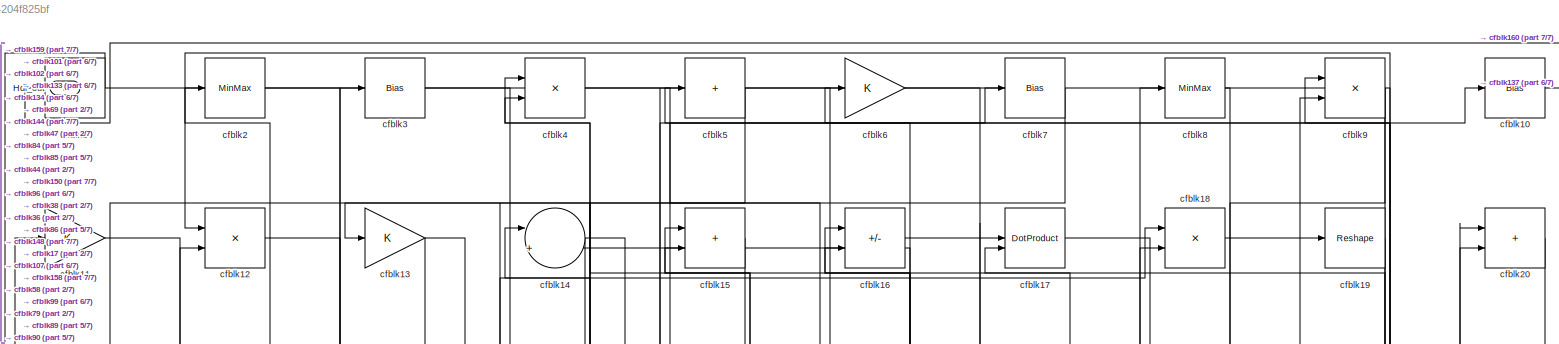
[diagram: root canvas - part 1/7, full width, top band]
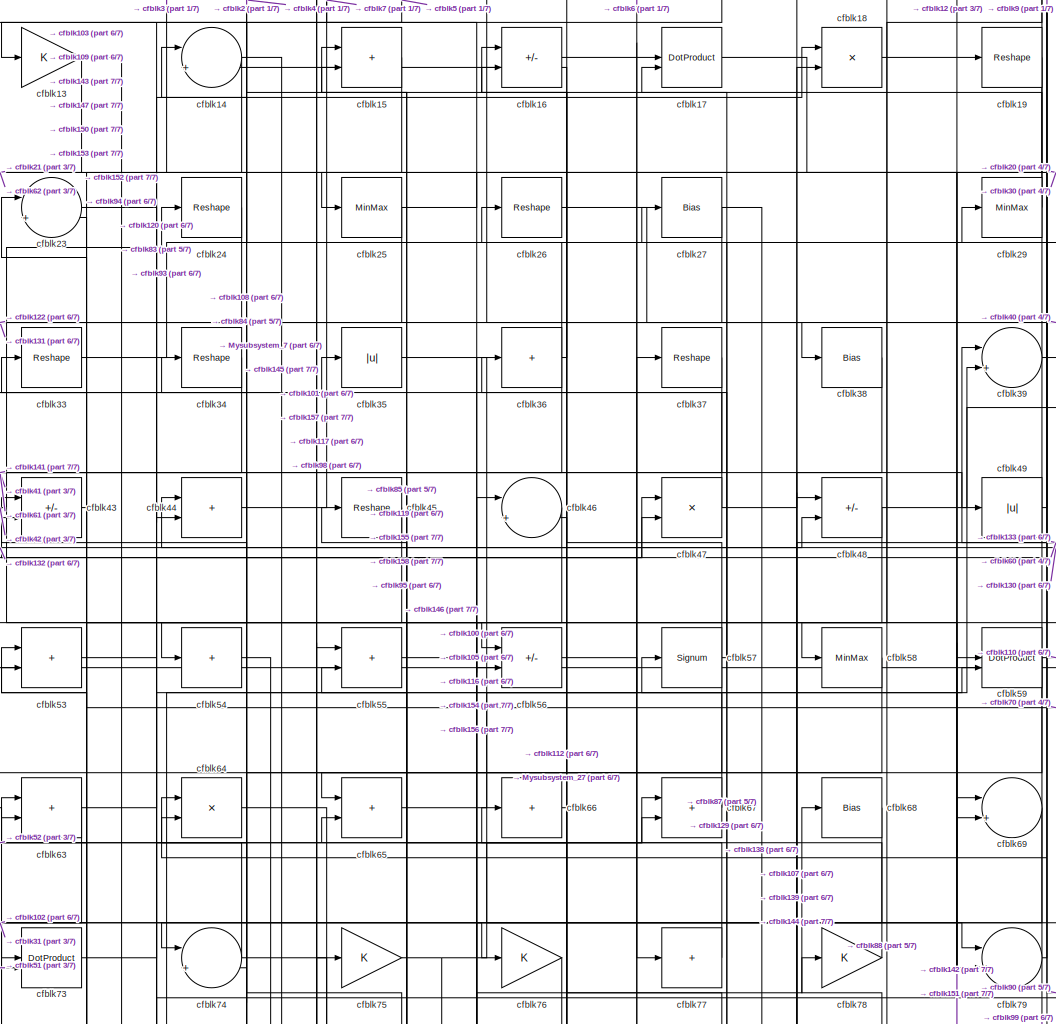
[diagram: root canvas - part 2/7, top center region]
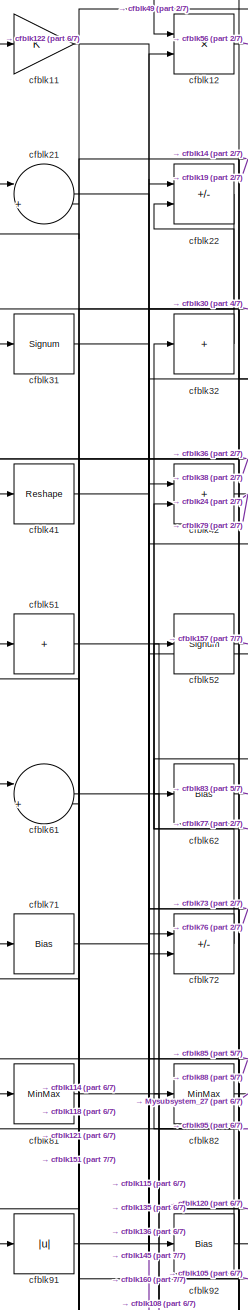
[diagram: root canvas - part 3/7, middle left region]
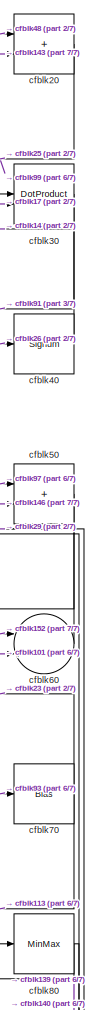
[diagram: root canvas - part 4/7, top right region]
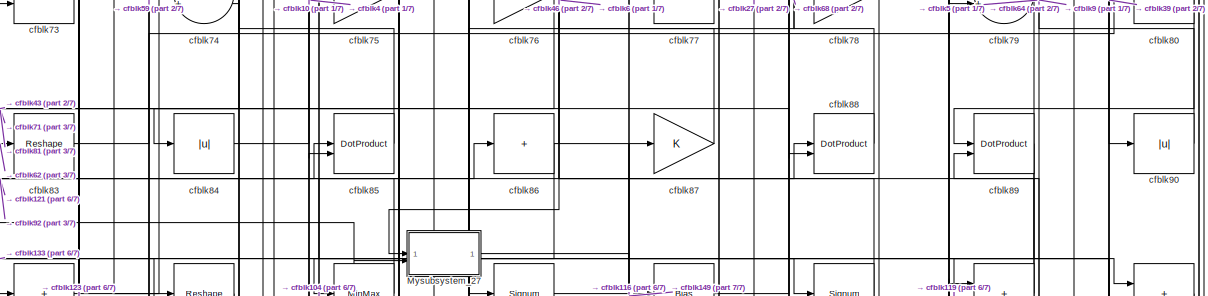
[diagram: root canvas - part 5/7, full width, middle band]
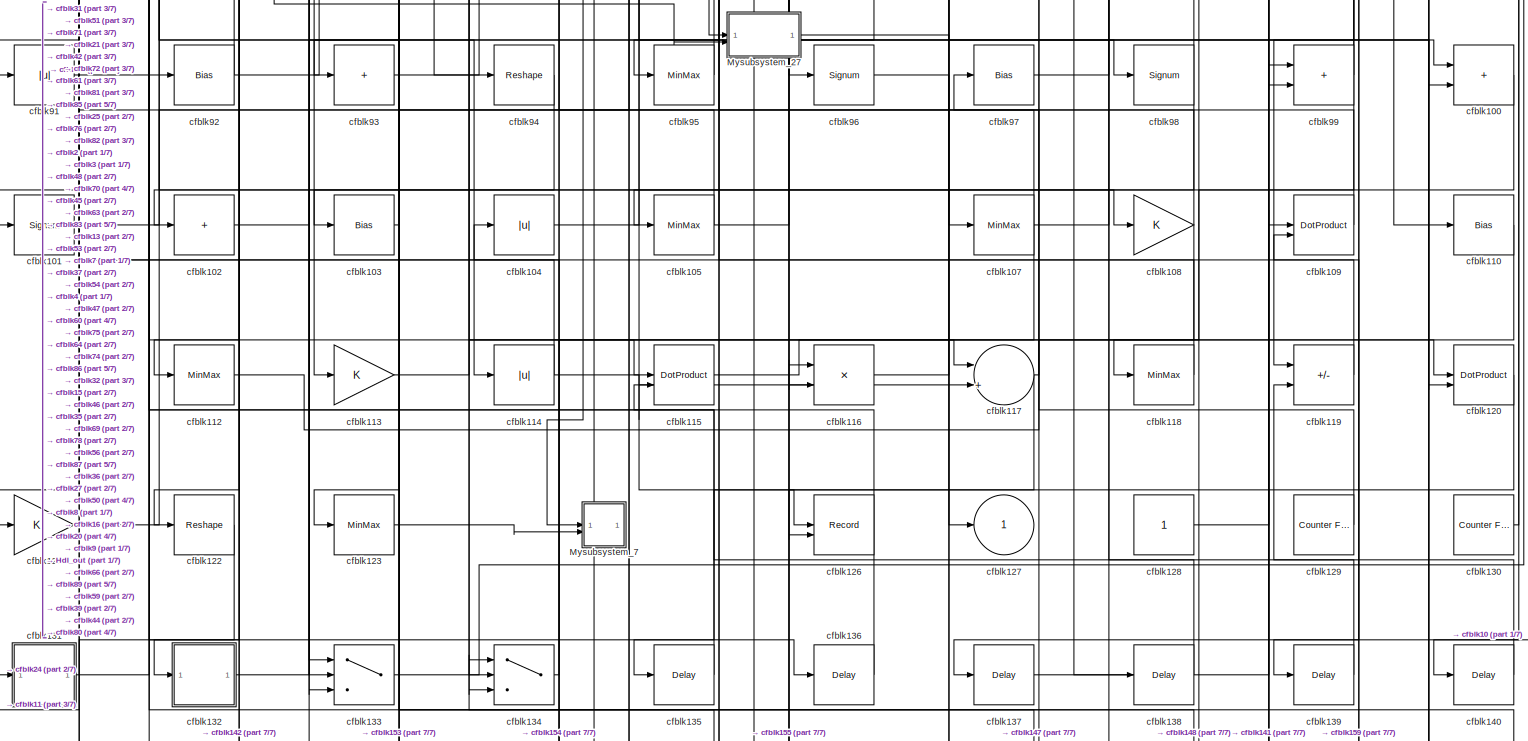
[diagram: root canvas - part 6/7, full width, bottom band]
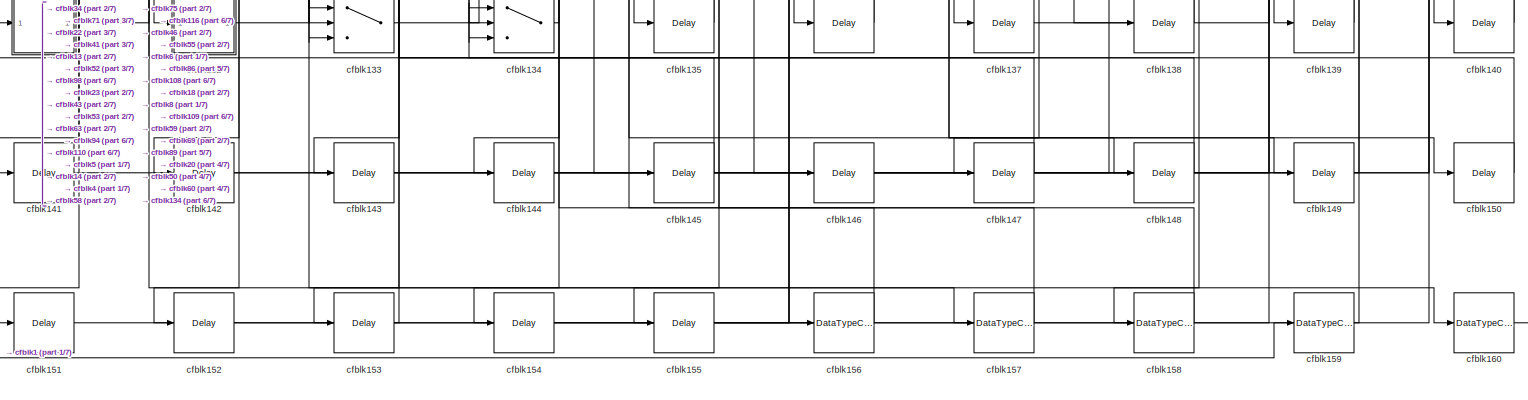
[diagram: root canvas - part 7/7, full width, bottom band]
MODEL slx_5f4204f825bf
KIND model
CONFIG AbsTol = auto
CONFIG EnableMultiTasking = off
CONFIG FixedStep = auto
CONFIG MaxStep = auto
CONFIG MinStep = auto
CONFIG RelTol = 1e-3
CONFIG SampleTimeConstraint = Unconstrained
CONFIG SolverName = VariableStepAuto
CONFIG StartTime = 0.0
CONFIG StopTime = 10.0
BLOCK [Outport] Hdl_out
  OutDataTypeStr = uint8
  Port = 2
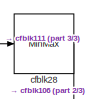
[diagram: Mysubsystem_27 - part 1/3, top right region]
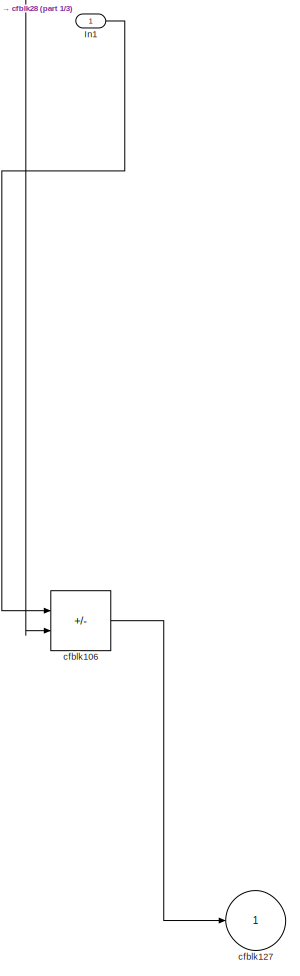
[diagram: Mysubsystem_27 - part 2/3, bottom right region]
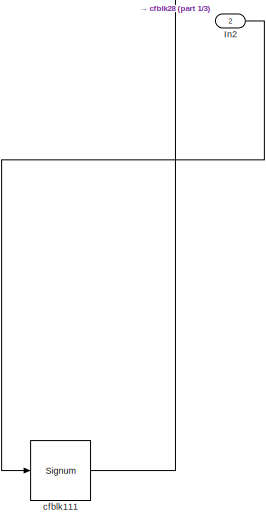
[diagram: Mysubsystem_27 - part 3/3, bottom left region]
BLOCK [SubSystem] Mysubsystem_27
  RTWFcnName = Mysubsystem_27
  RTWFcnNameOpts = User specified
  RTWFileNameOpts = Use function name
  RTWSystemCode = Reusable function
  TreatAsAtomicUnit = on
BLOCK [Inport] Mysubsystem_27/In1
BLOCK [Inport] Mysubsystem_27/In2
  Port = 2
BLOCK [Sum] Mysubsystem_27/cfblk106
  IconShape = rectangular
  Inputs = +-
BLOCK [Signum] Mysubsystem_27/cfblk111
BLOCK [Outport] Mysubsystem_27/cfblk127
  VectorParamsAs1DForOutWhenUnconnected = off
BLOCK [MinMax] Mysubsystem_27/cfblk28
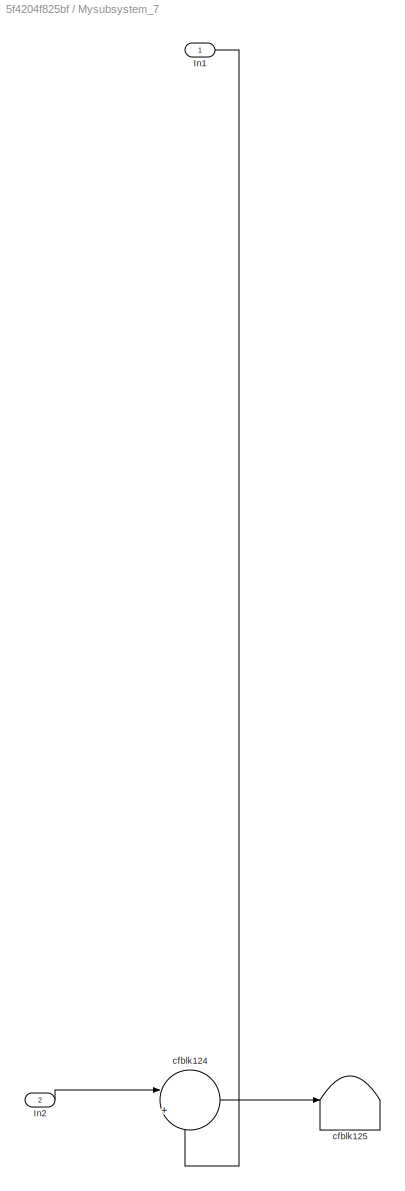
BLOCK [SubSystem] Mysubsystem_7
  RTWFcnName = Mysubsystem_7
  RTWFcnNameOpts = User specified
  RTWFileNameOpts = Use function name
  RTWSystemCode = Reusable function
  TreatAsAtomicUnit = on
BLOCK [Inport] Mysubsystem_7/In1
BLOCK [Inport] Mysubsystem_7/In2
  Port = 2
BLOCK [Sum] Mysubsystem_7/cfblk124
  Inputs = |++
BLOCK [Terminator] Mysubsystem_7/cfblk125
BLOCK [Sum] cfblk1
  IconShape = rectangular
  Inputs = +
  OutDataTypeStr = uint8
BLOCK [Bias] cfblk10
  Bias = 0.0
  SaturateOnIntegerOverflow = off
BLOCK [Sum] cfblk100
  IconShape = rectangular
  OutDataTypeStr = uint8
BLOCK [Signum] cfblk101
BLOCK [Sum] cfblk102
  IconShape = rectangular
  Inputs = +
  OutDataTypeStr = uint8
BLOCK [Bias] cfblk103
  Bias = 0.0
  SaturateOnIntegerOverflow = off
BLOCK [Abs] cfblk104
  OutDataTypeStr = uint8
  SaturateOnIntegerOverflow = off
BLOCK [MinMax] cfblk105
  OutDataTypeStr = uint8
BLOCK [MinMax] cfblk107
  OutDataTypeStr = uint8
BLOCK [Gain] cfblk108
  OutDataTypeStr = uint8
BLOCK [DotProduct] cfblk109
  OutDataTypeStr = uint8
BLOCK [Gain] cfblk11
  OutDataTypeStr = uint8
BLOCK [Bias] cfblk110
  Bias = 0.0
  SaturateOnIntegerOverflow = off
BLOCK [MinMax] cfblk112
  OutDataTypeStr = uint8
BLOCK [Gain] cfblk113
  OutDataTypeStr = uint8
BLOCK [Abs] cfblk114
  OutDataTypeStr = uint8
  SaturateOnIntegerOverflow = off
BLOCK [DotProduct] cfblk115
  OutDataTypeStr = uint8
BLOCK [Product] cfblk116
  Inputs = */
  OutDataTypeStr = uint8
  RndMeth = Zero
  SaturateOnIntegerOverflow = on
BLOCK [Sum] cfblk117
  Inputs = |++
  OutDataTypeStr = uint8
BLOCK [MinMax] cfblk118
  OutDataTypeStr = uint8
BLOCK [Sum] cfblk119
  IconShape = rectangular
  Inputs = +-
  OutDataTypeStr = uint8
BLOCK [Product] cfblk12
  Inputs = */
  OutDataTypeStr = uint8
  RndMeth = Zero
  SaturateOnIntegerOverflow = on
BLOCK [DotProduct] cfblk120
  OutDataTypeStr = uint8
BLOCK [Gain] cfblk121
  OutDataTypeStr = uint8
BLOCK [Reshape] cfblk122
BLOCK [MinMax] cfblk123
  OutDataTypeStr = uint8
BLOCK [Record] cfblk126
  CompatibilityTag = XY
  FileSettingsInternal = {"entries":[{"content":{"excelSettings":{"content":{},"type":"Streamout.ExcelSettings"}},"type":"Streamout.FileSettingStorage","uuid":""}],"packageUris":["http:\/\/schema.mathworks.com\/mf0\/streamout_blocks\/R2020a"],"version":"1.0"}
  Layout = [1 1]
  SignalsInternal = {"entries":[{"content":{"signals":[{"content":{"blockPath":[],"dimensions":[1],"domain":"","lineColor":"#a2142f","plots":[1],"port":1,"signalID":48185,"signalName":"cfblk114"},"type":"RecordBlkView.Signal","uuid":""},{"content":{"blockPath":[],"dimensions":[1],"domain":"","lineColor":"#139fff","plots":[1],"port":2,"signalID":48188,"signalName":"cfblk117"},"type":"RecordBlkView.Signal","uuid":""}]}...<+144ch>
  VisualizationBindings = {"xyplotplugin":{"info":[{"series":[{"bindingParametersList":[{"parameter":"X-Axis","signalID":48185,"signalName":"cfblk114"},{"parameter":"Y-Axis","signalID":48188,"signalName":"cfblk117"}],"seriesID":30062}],"subplotID":1}]}}
  st = -1
BLOCK [Outport] cfblk127
  OutDataTypeStr = uint8
  VectorParamsAs1DForOutWhenUnconnected = off
BLOCK [Constant] cfblk128
  OutDataTypeStr = uint8
  SampleTime = -1
BLOCK [Reference] cfblk129  REF=hdlsllib/Sources/Counter
Free-Running
  SourceBlock = hdlsllib/Sources/Counter\nFree-Running
  SourceType = Counter Free-Running
BLOCK [Gain] cfblk13
  OutDataTypeStr = uint8
BLOCK [Reference] cfblk130  REF=hdlsllib/Sources/Counter
Free-Running
  SourceBlock = hdlsllib/Sources/Counter\nFree-Running
  SourceType = Counter Free-Running
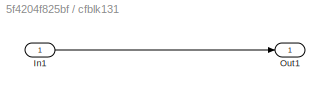
BLOCK [SubSystem] cfblk131
  LibrarySourceBlock = hdlsllib/Ports &\nSubsystems/Subsystem
BLOCK [Inport] cfblk131/In1
BLOCK [Outport] cfblk131/Out1
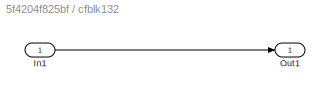
BLOCK [SubSystem] cfblk132
  LibrarySourceBlock = hdlsllib/Ports &\nSubsystems/Subsystem
BLOCK [Inport] cfblk132/In1
BLOCK [Outport] cfblk132/Out1
BLOCK [Switch] cfblk133
  InputSameDT = off
  OutDataTypeStr = uint8
  SaturateOnIntegerOverflow = off
BLOCK [Switch] cfblk134
  InputSameDT = off
  OutDataTypeStr = uint8
  SaturateOnIntegerOverflow = off
BLOCK [Delay] cfblk135
  InputPortMap = u0
  SampleTime = 1
BLOCK [Delay] cfblk136
  InputPortMap = u0
  SampleTime = 1
BLOCK [Delay] cfblk137
  InputPortMap = u0
  SampleTime = 1
BLOCK [Delay] cfblk138
  InputPortMap = u0
  SampleTime = 1
BLOCK [Delay] cfblk139
  InputPortMap = u0
  SampleTime = 1
BLOCK [Sum] cfblk14
  Inputs = |++
  OutDataTypeStr = uint8
BLOCK [Delay] cfblk140
  InputPortMap = u0
  SampleTime = 1
BLOCK [Delay] cfblk141
  InputPortMap = u0
  SampleTime = 1
BLOCK [Delay] cfblk142
  InputPortMap = u0
  SampleTime = 1
BLOCK [Delay] cfblk143
  InputPortMap = u0
  SampleTime = 1
BLOCK [Delay] cfblk144
  InputPortMap = u0
  SampleTime = 1
BLOCK [Delay] cfblk145
  InputPortMap = u0
  SampleTime = 1
BLOCK [Delay] cfblk146
  InputPortMap = u0
  SampleTime = 1
BLOCK [Delay] cfblk147
  InputPortMap = u0
  SampleTime = 1
BLOCK [Delay] cfblk148
  InputPortMap = u0
  SampleTime = 1
BLOCK [Delay] cfblk149
  InputPortMap = u0
  SampleTime = 1
BLOCK [Sum] cfblk15
  IconShape = rectangular
  OutDataTypeStr = uint8
BLOCK [Delay] cfblk150
  InputPortMap = u0
  SampleTime = 1
BLOCK [Delay] cfblk151
  InputPortMap = u0
  SampleTime = 1
BLOCK [Delay] cfblk152
  InputPortMap = u0
  SampleTime = 1
BLOCK [Delay] cfblk153
  InputPortMap = u0
  SampleTime = 1
BLOCK [Delay] cfblk154
  InputPortMap = u0
  SampleTime = 1
BLOCK [Delay] cfblk155
  InputPortMap = u0
  SampleTime = 1
BLOCK [DataTypeConversion] cfblk156
  OutDataTypeStr = uint8
  RndMeth = Floor
  SaturateOnIntegerOverflow = off
BLOCK [DataTypeConversion] cfblk157
  OutDataTypeStr = uint8
  RndMeth = Floor
  SaturateOnIntegerOverflow = off
BLOCK [DataTypeConversion] cfblk158
  OutDataTypeStr = uint8
  RndMeth = Floor
  SaturateOnIntegerOverflow = off
BLOCK [DataTypeConversion] cfblk159
  OutDataTypeStr = uint8
  RndMeth = Floor
  SaturateOnIntegerOverflow = off
BLOCK [Sum] cfblk16
  IconShape = rectangular
  Inputs = +-
  OutDataTypeStr = uint8
BLOCK [DataTypeConversion] cfblk160
  OutDataTypeStr = uint8
  RndMeth = Floor
  SaturateOnIntegerOverflow = off
BLOCK [DotProduct] cfblk17
  OutDataTypeStr = uint8
BLOCK [Product] cfblk18
  Inputs = */
  OutDataTypeStr = uint8
  RndMeth = Zero
  SaturateOnIntegerOverflow = on
BLOCK [Reshape] cfblk19
BLOCK [MinMax] cfblk2
  OutDataTypeStr = uint8
BLOCK [Sum] cfblk20
  IconShape = rectangular
  OutDataTypeStr = uint8
BLOCK [Sum] cfblk21
  Inputs = |++
  OutDataTypeStr = uint8
BLOCK [Sum] cfblk22
  IconShape = rectangular
  Inputs = +-
  OutDataTypeStr = uint8
BLOCK [Sum] cfblk23
  Inputs = |++
  OutDataTypeStr = uint8
BLOCK [Reshape] cfblk24
BLOCK [MinMax] cfblk25
  OutDataTypeStr = uint8
BLOCK [Reshape] cfblk26
BLOCK [Bias] cfblk27
  Bias = 0.0
  SaturateOnIntegerOverflow = off
BLOCK [MinMax] cfblk29
  OutDataTypeStr = uint8
BLOCK [Bias] cfblk3
  Bias = 0.0
  SaturateOnIntegerOverflow = off
BLOCK [DotProduct] cfblk30
  OutDataTypeStr = uint8
BLOCK [Signum] cfblk31
BLOCK [Sum] cfblk32
  IconShape = rectangular
  Inputs = +
  OutDataTypeStr = uint8
BLOCK [Reshape] cfblk33
BLOCK [Reshape] cfblk34
BLOCK [Abs] cfblk35
  OutDataTypeStr = uint8
  SaturateOnIntegerOverflow = off
BLOCK [Sum] cfblk36
  IconShape = rectangular
  Inputs = +
  OutDataTypeStr = uint8
BLOCK [Reshape] cfblk37
BLOCK [Bias] cfblk38
  Bias = 0.0
  SaturateOnIntegerOverflow = off
BLOCK [Sum] cfblk39
  Inputs = |++
  OutDataTypeStr = uint8
BLOCK [Product] cfblk4
  Inputs = */
  OutDataTypeStr = uint8
  RndMeth = Zero
  SaturateOnIntegerOverflow = on
BLOCK [Signum] cfblk40
BLOCK [Reshape] cfblk41
BLOCK [Sum] cfblk42
  IconShape = rectangular
  OutDataTypeStr = uint8
BLOCK [Sum] cfblk43
  IconShape = rectangular
  Inputs = +-
  OutDataTypeStr = uint8
BLOCK [Sum] cfblk44
  IconShape = rectangular
  OutDataTypeStr = uint8
BLOCK [Reshape] cfblk45
BLOCK [Sum] cfblk46
  Inputs = |++
  OutDataTypeStr = uint8
BLOCK [Product] cfblk47
  Inputs = */
  OutDataTypeStr = uint8
  RndMeth = Zero
  SaturateOnIntegerOverflow = on
BLOCK [Sum] cfblk48
  IconShape = rectangular
  Inputs = +-
  OutDataTypeStr = uint8
BLOCK [Abs] cfblk49
  OutDataTypeStr = uint8
  SaturateOnIntegerOverflow = off
BLOCK [Sum] cfblk5
  IconShape = rectangular
  Inputs = +
  OutDataTypeStr = uint8
BLOCK [Sum] cfblk50
  IconShape = rectangular
  OutDataTypeStr = uint8
BLOCK [Sum] cfblk51
  IconShape = rectangular
  Inputs = +
  OutDataTypeStr = uint8
BLOCK [Signum] cfblk52
BLOCK [Sum] cfblk53
  IconShape = rectangular
  OutDataTypeStr = uint8
BLOCK [Sum] cfblk54
  IconShape = rectangular
  Inputs = +
  OutDataTypeStr = uint8
BLOCK [Sum] cfblk55
  IconShape = rectangular
  OutDataTypeStr = uint8
BLOCK [Sum] cfblk56
  IconShape = rectangular
  Inputs = +-
  OutDataTypeStr = uint8
BLOCK [Signum] cfblk57
BLOCK [MinMax] cfblk58
  OutDataTypeStr = uint8
BLOCK [DotProduct] cfblk59
  OutDataTypeStr = uint8
BLOCK [Gain] cfblk6
  OutDataTypeStr = uint8
BLOCK [Sum] cfblk60
  Inputs = |++
  OutDataTypeStr = uint8
BLOCK [Sum] cfblk61
  Inputs = |++
  OutDataTypeStr = uint8
BLOCK [Bias] cfblk62
  Bias = 0.0
  SaturateOnIntegerOverflow = off
BLOCK [Sum] cfblk63
  IconShape = rectangular
  OutDataTypeStr = uint8
BLOCK [Product] cfblk64
  Inputs = */
  OutDataTypeStr = uint8
  RndMeth = Zero
  SaturateOnIntegerOverflow = on
BLOCK [Sum] cfblk65
  IconShape = rectangular
  OutDataTypeStr = uint8
BLOCK [Sum] cfblk66
  IconShape = rectangular
  Inputs = +
  OutDataTypeStr = uint8
BLOCK [Sum] cfblk67
  IconShape = rectangular
  OutDataTypeStr = uint8
BLOCK [Bias] cfblk68
  Bias = 0.0
  SaturateOnIntegerOverflow = off
BLOCK [Sum] cfblk69
  Inputs = |++
  OutDataTypeStr = uint8
BLOCK [Bias] cfblk7
  Bias = 0.0
  SaturateOnIntegerOverflow = off
BLOCK [Bias] cfblk70
  Bias = 0.0
  SaturateOnIntegerOverflow = off
BLOCK [Bias] cfblk71
  Bias = 0.0
  SaturateOnIntegerOverflow = off
BLOCK [Sum] cfblk72
  IconShape = rectangular
  Inputs = +-
  OutDataTypeStr = uint8
BLOCK [DotProduct] cfblk73
  OutDataTypeStr = uint8
BLOCK [Sum] cfblk74
  Inputs = |++
  OutDataTypeStr = uint8
BLOCK [Gain] cfblk75
  OutDataTypeStr = uint8
BLOCK [Gain] cfblk76
  OutDataTypeStr = uint8
BLOCK [Sum] cfblk77
  IconShape = rectangular
  Inputs = +
  OutDataTypeStr = uint8
BLOCK [Gain] cfblk78
  OutDataTypeStr = uint8
BLOCK [Sum] cfblk79
  Inputs = |++
  OutDataTypeStr = uint8
BLOCK [MinMax] cfblk8
  OutDataTypeStr = uint8
BLOCK [MinMax] cfblk80
  OutDataTypeStr = uint8
BLOCK [MinMax] cfblk81
  OutDataTypeStr = uint8
BLOCK [MinMax] cfblk82
  OutDataTypeStr = uint8
BLOCK [Reshape] cfblk83
BLOCK [Abs] cfblk84
  OutDataTypeStr = uint8
  SaturateOnIntegerOverflow = off
BLOCK [DotProduct] cfblk85
  OutDataTypeStr = uint8
BLOCK [Sum] cfblk86
  IconShape = rectangular
  Inputs = +
  OutDataTypeStr = uint8
BLOCK [Gain] cfblk87
  OutDataTypeStr = uint8
BLOCK [DotProduct] cfblk88
  OutDataTypeStr = uint8
BLOCK [DotProduct] cfblk89
  OutDataTypeStr = uint8
BLOCK [Product] cfblk9
  Inputs = */
  OutDataTypeStr = uint8
  RndMeth = Zero
  SaturateOnIntegerOverflow = on
BLOCK [Abs] cfblk90
  OutDataTypeStr = uint8
  SaturateOnIntegerOverflow = off
BLOCK [Abs] cfblk91
  OutDataTypeStr = uint8
  SaturateOnIntegerOverflow = off
BLOCK [Bias] cfblk92
  Bias = 0.0
  SaturateOnIntegerOverflow = off
BLOCK [Sum] cfblk93
  IconShape = rectangular
  Inputs = +
  OutDataTypeStr = uint8
BLOCK [Reshape] cfblk94
BLOCK [MinMax] cfblk95
  OutDataTypeStr = uint8
BLOCK [Signum] cfblk96
BLOCK [Bias] cfblk97
  Bias = 0.0
  SaturateOnIntegerOverflow = off
BLOCK [Signum] cfblk98
BLOCK [Sum] cfblk99
  IconShape = rectangular
  OutDataTypeStr = uint8
LINE Mysubsystem_27/In1:1 -> Mysubsystem_27/cfblk106:1
LINE Mysubsystem_27/In2:1 -> Mysubsystem_27/cfblk111:1
LINE Mysubsystem_27/cfblk106:1 -> Mysubsystem_27/cfblk127:1
LINE Mysubsystem_27/cfblk111:1 -> Mysubsystem_27/cfblk28:1
LINE Mysubsystem_27/cfblk28:1 -> Mysubsystem_27/cfblk106:2
LINE Mysubsystem_27:1 -> cfblk127:1
LINE Mysubsystem_7/In1:1 -> Mysubsystem_7/cfblk124:2
LINE Mysubsystem_7/In2:1 -> Mysubsystem_7/cfblk124:1
LINE Mysubsystem_7/cfblk124:1 -> Mysubsystem_7/cfblk125:1
LINE cfblk100:1 -> cfblk105:1
NET cfblk101:1 -> cfblk47:2, cfblk60:2, cfblk75:1
LINE cfblk102:1 -> cfblk3:1
LINE cfblk103:1 -> cfblk53:1
LINE cfblk104:1 -> cfblk86:1
NET cfblk105:1 -> cfblk51:1, cfblk78:1
NET cfblk107:1 -> cfblk134:3, cfblk15:2, cfblk8:1
NET cfblk108:1 -> cfblk147:1, cfblk64:1
LINE cfblk109:1 -> cfblk63:1
LINE cfblk10:1 -> cfblk137:1
LINE cfblk110:1 -> cfblk154:1
LINE cfblk112:1 -> cfblk97:1
LINE cfblk113:1 -> cfblk80:1
NET cfblk114:1 -> cfblk126:1, cfblk71:1
LINE cfblk115:1 -> cfblk117:1
LINE cfblk116:1 -> cfblk87:1
NET cfblk117:1 -> cfblk126:2, cfblk27:1
LINE cfblk118:1 -> cfblk61:2
LINE cfblk119:1 -> cfblk45:1
LINE cfblk11:1 -> cfblk92:1
LINE cfblk120:1 -> cfblk135:1
LINE cfblk121:1 -> cfblk85:1
LINE cfblk122:1 -> cfblk11:1
LINE cfblk123:1 -> Mysubsystem_7:2
LINE cfblk128:1 -> cfblk99:1
LINE cfblk129:1 -> cfblk36:1
LINE cfblk12:1 -> cfblk56:1
LINE cfblk130:1 -> cfblk44:1
LINE cfblk131/In1:1 -> cfblk131/Out1:1
LINE cfblk131:1 -> cfblk35:1
LINE cfblk132/In1:1 -> cfblk132/Out1:1
LINE cfblk132:1 -> cfblk48:2
LINE cfblk133:1 -> cfblk39:1
LINE cfblk134:1 -> cfblk104:1
LINE cfblk135:1 -> cfblk42:1
LINE cfblk136:1 -> cfblk72:1
LINE cfblk137:1 -> cfblk9:2
LINE cfblk138:1 -> cfblk115:2
LINE cfblk139:1 -> cfblk48:1
NET cfblk13:1 -> cfblk152:1, cfblk94:1
LINE cfblk140:1 -> cfblk119:2
LINE cfblk141:1 -> cfblk109:1
LINE cfblk142:1 -> cfblk59:1
LINE cfblk143:1 -> cfblk20:2
LINE cfblk144:1 -> cfblk18:2
LINE cfblk145:1 -> cfblk22:1
LINE cfblk146:1 -> cfblk50:2
LINE cfblk147:1 -> cfblk63:2
LINE cfblk148:1 -> cfblk134:1
LINE cfblk149:1 -> cfblk89:2
NET cfblk14:1 -> cfblk145:1, cfblk21:2
LINE cfblk150:1 -> cfblk23:1
LINE cfblk151:1 -> cfblk69:1
LINE cfblk152:1 -> cfblk60:1
LINE cfblk153:1 -> cfblk53:2
LINE cfblk154:1 -> cfblk46:1
LINE cfblk155:1 -> cfblk116:1
LINE cfblk156:1 -> cfblk34:1
LINE cfblk157:1 -> cfblk55:1
LINE cfblk158:1 -> cfblk55:2
LINE cfblk159:1 -> cfblk109:2
LINE cfblk15:1 -> cfblk73:1
LINE cfblk160:1 -> cfblk1:1
LINE cfblk16:1 -> cfblk77:1
LINE cfblk17:1 -> cfblk30:2
LINE cfblk18:1 -> cfblk19:1
LINE cfblk19:1 -> cfblk62:1
LINE cfblk1:1 -> cfblk159:1
NET cfblk20:1 -> cfblk25:1, cfblk99:2
LINE cfblk21:1 -> cfblk136:1
LINE cfblk22:1 -> cfblk72:2
LINE cfblk23:1 -> cfblk44:2
LINE cfblk24:1 -> cfblk131:1
NET cfblk25:1 -> cfblk122:1, cfblk30:1
LINE cfblk26:1 -> cfblk40:1
NET cfblk27:1 -> cfblk138:1, cfblk84:1
LINE cfblk29:1 -> cfblk13:1
LINE cfblk2:1 -> cfblk133:1
LINE cfblk30:1 -> cfblk91:1
NET cfblk31:1 -> cfblk121:1, cfblk76:1
LINE cfblk32:1 -> cfblk22:2
LINE cfblk33:1 -> cfblk26:1
LINE cfblk34:1 -> cfblk141:1
NET cfblk35:1 -> cfblk100:2, cfblk79:1
NET cfblk36:1 -> cfblk16:2, cfblk41:1, cfblk4:2, cfblk54:1
LINE cfblk37:1 -> cfblk65:1
LINE cfblk38:1 -> cfblk61:1
LINE cfblk39:1 -> cfblk90:1
LINE cfblk3:1 -> cfblk69:2
LINE cfblk40:1 -> cfblk14:1
NET cfblk41:1 -> cfblk12:2, cfblk160:1
NET cfblk42:1 -> cfblk24:1, cfblk79:2
LINE cfblk43:1 -> cfblk143:1
LINE cfblk44:1 -> cfblk7:1
LINE cfblk45:1 -> cfblk103:1
LINE cfblk46:1 -> cfblk95:1
NET cfblk47:1 -> cfblk2:1, cfblk49:1, cfblk4:1
NET cfblk48:1 -> cfblk20:1, cfblk56:2
LINE cfblk49:1 -> cfblk12:1
NET cfblk4:1 -> cfblk150:1, cfblk85:2, cfblk96:1
NET cfblk50:1 -> cfblk70:1, cfblk93:1
NET cfblk51:1 -> cfblk114:1, cfblk73:2
LINE cfblk52:1 -> cfblk157:1
NET cfblk53:1 -> cfblk120:1, cfblk18:1
LINE cfblk54:1 -> Mysubsystem_7:1
LINE cfblk55:1 -> cfblk156:1
LINE cfblk56:1 -> cfblk100:1
NET cfblk57:1 -> cfblk14:2, cfblk17:2, cfblk74:2
LINE cfblk58:1 -> cfblk155:1
NET cfblk59:1 -> cfblk110:1, cfblk132:1
NET cfblk5:1 -> cfblk144:1, cfblk38:1
LINE cfblk60:1 -> cfblk29:1
NET cfblk61:1 -> cfblk120:2, cfblk21:1
LINE cfblk62:1 -> cfblk83:1
NET cfblk63:1 -> cfblk102:1, cfblk47:1
LINE cfblk64:1 -> cfblk117:2
LINE cfblk65:1 -> cfblk39:2
LINE cfblk66:1 -> Mysubsystem_27:1
LINE cfblk67:1 -> cfblk57:1
LINE cfblk68:1 -> cfblk74:1
LINE cfblk69:1 -> cfblk116:2
NET cfblk6:1 -> cfblk148:1, cfblk17:1
NET cfblk70:1 -> cfblk113:1, cfblk23:2
NET cfblk71:1 -> cfblk151:1, cfblk88:2
LINE cfblk72:1 -> cfblk42:2
NET cfblk73:1 -> cfblk65:2, cfblk67:2
NET cfblk74:1 -> cfblk33:1, cfblk98:1
NET cfblk75:1 -> cfblk146:1, cfblk67:1
LINE cfblk76:1 -> cfblk112:1
LINE cfblk77:1 -> cfblk52:1
LINE cfblk78:1 -> cfblk15:1
LINE cfblk79:1 -> cfblk9:1
NET cfblk7:1 -> cfblk101:1, cfblk134:2
NET cfblk80:1 -> cfblk139:1, cfblk140:1
NET cfblk81:1 -> cfblk108:1, cfblk82:1
LINE cfblk82:1 -> Mysubsystem_27:2
NET cfblk83:1 -> cfblk123:1, cfblk59:2
LINE cfblk84:1 -> cfblk10:1
NET cfblk85:1 -> cfblk43:2, cfblk81:1
NET cfblk86:1 -> cfblk133:2, cfblk149:1, cfblk6:1
LINE cfblk87:1 -> cfblk46:2
LINE cfblk88:1 -> cfblk68:1
LINE cfblk89:1 -> cfblk119:1
LINE cfblk8:1 -> cfblk158:1
NET cfblk90:1 -> cfblk43:1, cfblk5:1, cfblk64:2
LINE cfblk91:1 -> cfblk115:1
NET cfblk92:1 -> cfblk31:1, cfblk88:1
LINE cfblk93:1 -> cfblk37:1
LINE cfblk94:1 -> cfblk153:1
LINE cfblk95:1 -> cfblk32:1
LINE cfblk96:1 -> cfblk107:1
LINE cfblk97:1 -> cfblk50:1
NET cfblk98:1 -> cfblk133:3, cfblk142:1, cfblk16:1
NET cfblk99:1 -> Hdl_out:1, cfblk118:1, cfblk66:1
NET cfblk9:1 -> cfblk58:1, cfblk89:1
note: NET lines group one-source signal fan-out (src -> all destinations, sorted); 1:1 wires keep LINE
